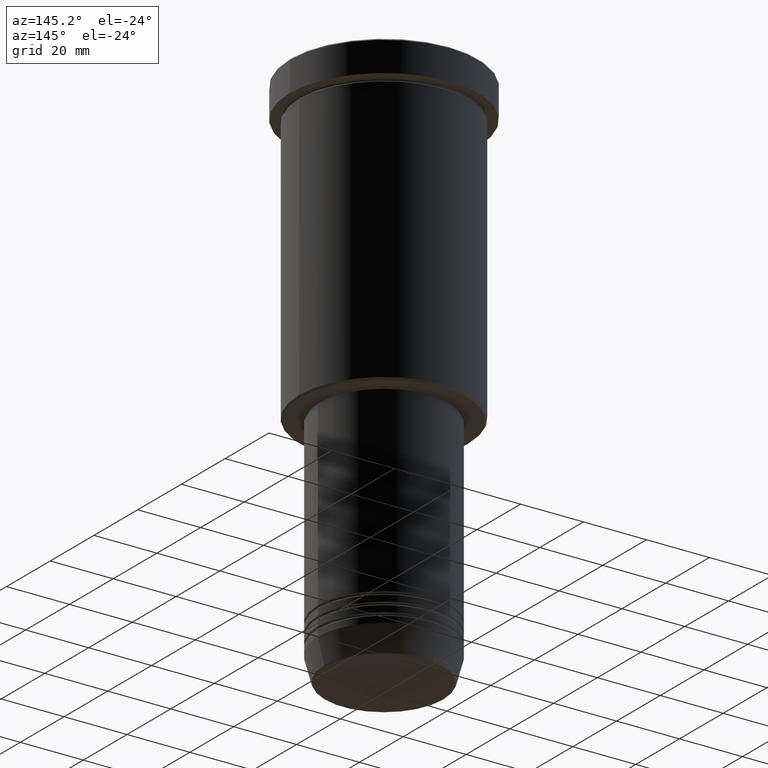
[diagram: clean part render]
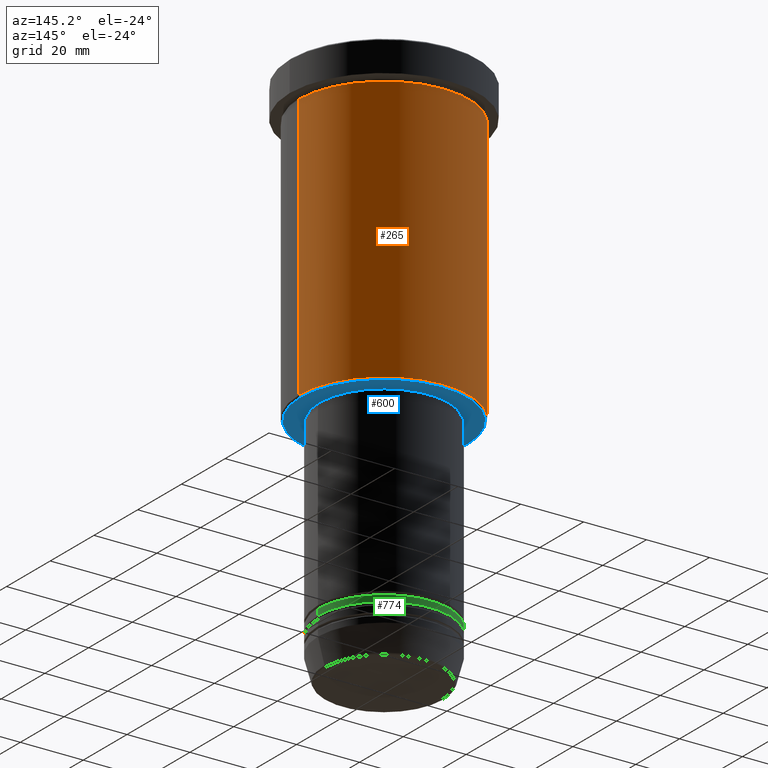
[diagram: same view with three faces highlighted in distinct colors, each labeled with its STEP entity id]
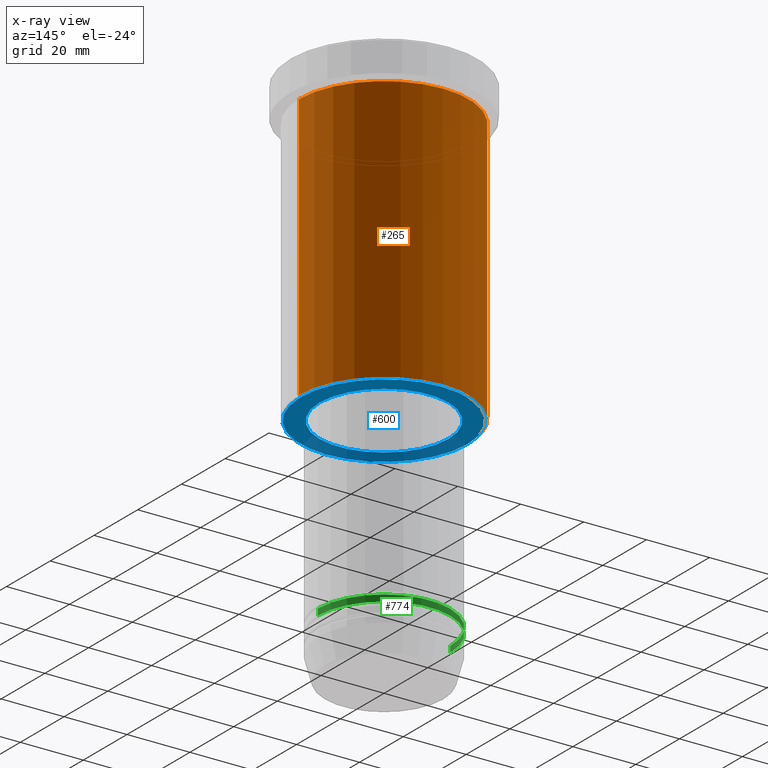
[diagram: x-ray of the same camera — body ghosted, the three highlighted faces saturated]
A machine part, auxiliary view with three faces highlighted in distinct colors.
The next image is the same camera in x-ray (body ghosted, the three faces saturated) — at least one of them is partly hidden behind the body in this view.
Their STEP definitions:

[orange] entity #265 — the highlighted cylindrical surface (partial cylindrical patch) has radius 27 mm, axis along (-0, -0, 1).
#20 = EDGE_CURVE ( 'NONE', #328, #544, #782, .T. ) ;
#62 = DIRECTION ( 'NONE',  ( 1.000000000000000000, 0.000000000000000000, 0.000000000000000000 ) ) ;
#112 = CARTESIAN_POINT ( 'NONE',  ( 27.00000000000000355, 0.000000000000000000, -10.99999999999999289 ) ) ;
#137 = EDGE_CURVE ( 'NONE', #544, #470, #826, .T. ) ;
#193 = CARTESIAN_POINT ( 'NONE',  ( 0.000000000000000000, 0.000000000000000000, 0.000000000000000000 ) ) ;
#227 = VECTOR ( 'NONE', #1075, 1000.000000000000000 ) ;
#265 = ADVANCED_FACE ( 'NONE', ( #286 ), #644, .T. ) ;
#286 = FACE_OUTER_BOUND ( 'NONE', #288, .T. ) ;
#288 = EDGE_LOOP ( 'NONE', ( #324, #334, #803, #333 ) ) ;
#324 = ORIENTED_EDGE ( 'NONE', *, *, #20, .T. ) ;
#328 = VERTEX_POINT ( 'NONE', #944 ) ;
#333 = ORIENTED_EDGE ( 'NONE', *, *, #903, .F. ) ;
#334 = ORIENTED_EDGE ( 'NONE', *, *, #137, .T. ) ;
#353 = DIRECTION ( 'NONE',  ( -1.000000000000000000, 0.000000000000000000, 0.000000000000000000 ) ) ;
#398 = EDGE_CURVE ( 'NONE', #1093, #470, #721, .T. ) ;
#406 = VECTOR ( 'NONE', #1034, 1000.000000000000000 ) ;
#470 = VERTEX_POINT ( 'NONE', #816 ) ;
#475 = AXIS2_PLACEMENT_3D ( 'NONE', #1150, #677, #62 ) ;
#529 = AXIS2_PLACEMENT_3D ( 'NONE', #193, #738, #652 ) ;
#544 = VERTEX_POINT ( 'NONE', #974 ) ;
#549 = CARTESIAN_POINT ( 'NONE',  ( 0.000000000000000000, 0.000000000000000000, -95.49999999999995737 ) ) ;
#644 = CYLINDRICAL_SURFACE ( 'NONE', #529, 27.00000000000000355 ) ;
#652 = DIRECTION ( 'NONE',  ( 1.000000000000000000, 0.000000000000000000, 0.000000000000000000 ) ) ;
#671 = CARTESIAN_POINT ( 'NONE',  ( 27.00000000000000355, 0.000000000000000000, 0.000000000000000000 ) ) ;
#677 = DIRECTION ( 'NONE',  ( -0.000000000000000000, -0.000000000000000000, 1.000000000000000000 ) ) ;
#721 = CIRCLE ( 'NONE', #475, 27.00000000000000355 ) ;
#738 = DIRECTION ( 'NONE',  ( -0.000000000000000000, -0.000000000000000000, 1.000000000000000000 ) ) ;
#782 = CIRCLE ( 'NONE', #989, 27.00000000000000355 ) ;
#803 = ORIENTED_EDGE ( 'NONE', *, *, #398, .F. ) ;
#816 = CARTESIAN_POINT ( 'NONE',  ( -27.00000000000000355, 3.306546357697854128E-15, -10.99999999999999289 ) ) ;
#826 = LINE ( 'NONE', #1165, #227 ) ;
#858 = LINE ( 'NONE', #671, #406 ) ;
#903 = EDGE_CURVE ( 'NONE', #328, #1093, #858, .T. ) ;
#944 = CARTESIAN_POINT ( 'NONE',  ( 27.00000000000000355, 0.000000000000000000, -95.49999999999995737 ) ) ;
#974 = CARTESIAN_POINT ( 'NONE',  ( -27.00000000000000355, 3.306546357697854128E-15, -95.49999999999995737 ) ) ;
#989 = AXIS2_PLACEMENT_3D ( 'NONE', #549, #1096, #353 ) ;
#1034 = DIRECTION ( 'NONE',  ( -0.000000000000000000, -0.000000000000000000, 1.000000000000000000 ) ) ;
#1075 = DIRECTION ( 'NONE',  ( -0.000000000000000000, -0.000000000000000000, 1.000000000000000000 ) ) ;
#1093 = VERTEX_POINT ( 'NONE', #112 ) ;
#1096 = DIRECTION ( 'NONE',  ( -0.000000000000000000, -0.000000000000000000, 1.000000000000000000 ) ) ;
#1150 = CARTESIAN_POINT ( 'NONE',  ( 0.000000000000000000, 0.000000000000000000, -10.99999999999999289 ) ) ;
#1165 = CARTESIAN_POINT ( 'NONE',  ( -27.00000000000000355, 3.306546357697854128E-15, 0.000000000000000000 ) ) ;

[blue] entity #600 — the highlighted planar face has unit normal (0, 0, -1).
#17 = DIRECTION ( 'NONE',  ( 1.000000000000000000, 0.000000000000000000, 0.000000000000000000 ) ) ;
#28 = DIRECTION ( 'NONE',  ( -1.000000000000000000, 0.000000000000000000, 0.000000000000000000 ) ) ;
#38 = ORIENTED_EDGE ( 'NONE', *, *, #976, .T. ) ;
#46 = DIRECTION ( 'NONE',  ( -1.000000000000000000, 0.000000000000000000, 0.000000000000000000 ) ) ;
#56 = AXIS2_PLACEMENT_3D ( 'NONE', #617, #1159, #824 ) ;
#209 = AXIS2_PLACEMENT_3D ( 'NONE', #906, #351, #707 ) ;
#218 = EDGE_CURVE ( 'NONE', #501, #252, #386, .T. ) ;
#252 = VERTEX_POINT ( 'NONE', #832 ) ;
#269 = FACE_OUTER_BOUND ( 'NONE', #365, .T. ) ;
#331 = DIRECTION ( 'NONE',  ( 0.000000000000000000, 0.000000000000000000, -1.000000000000000000 ) ) ;
#351 = DIRECTION ( 'NONE',  ( 0.000000000000000000, 0.000000000000000000, -1.000000000000000000 ) ) ;
#364 = EDGE_LOOP ( 'NONE', ( #38, #420 ) ) ;
#365 = EDGE_LOOP ( 'NONE', ( #659, #1017 ) ) ;
#386 = CIRCLE ( 'NONE', #571, 26.49999999999995381 ) ;
#388 = CARTESIAN_POINT ( 'NONE',  ( 0.000000000000000000, 0.000000000000000000, -96.00000000000000000 ) ) ;
#400 = DIRECTION ( 'NONE',  ( 0.000000000000000000, 0.000000000000000000, -1.000000000000000000 ) ) ;
#420 = ORIENTED_EDGE ( 'NONE', *, *, #797, .T. ) ;
#421 = CIRCLE ( 'NONE', #56, 20.50000000000000000 ) ;
#432 = FACE_BOUND ( 'NONE', #364, .T. ) ;
#467 = CARTESIAN_POINT ( 'NONE',  ( 0.000000000000000000, 0.000000000000000000, -96.00000000000000000 ) ) ;
#498 = VERTEX_POINT ( 'NONE', #794 ) ;
#501 = VERTEX_POINT ( 'NONE', #1154 ) ;
#542 = PLANE ( 'NONE',  #209 ) ;
#570 = DIRECTION ( 'NONE',  ( -0.000000000000000000, -0.000000000000000000, 1.000000000000000000 ) ) ;
#571 = AXIS2_PLACEMENT_3D ( 'NONE', #388, #400, #28 ) ;
#600 = ADVANCED_FACE ( 'NONE', ( #269, #432 ), #542, .T. ) ;
#617 = CARTESIAN_POINT ( 'NONE',  ( 0.000000000000000000, 0.000000000000000000, -96.00000000000000000 ) ) ;
#659 = ORIENTED_EDGE ( 'NONE', *, *, #218, .T. ) ;
#707 = DIRECTION ( 'NONE',  ( -1.000000000000000000, 0.000000000000000000, -0.000000000000000000 ) ) ;
#794 = CARTESIAN_POINT ( 'NONE',  ( -20.50000000000000000, 2.510525938252074481E-15, -96.00000000000000000 ) ) ;
#797 = EDGE_CURVE ( 'NONE', #498, #875, #1068, .T. ) ;
#824 = DIRECTION ( 'NONE',  ( 1.000000000000000000, 0.000000000000000000, 0.000000000000000000 ) ) ;
#832 = CARTESIAN_POINT ( 'NONE',  ( -26.49999999999995381, 3.275930187719167185E-15, -96.00000000000000000 ) ) ;
#849 = EDGE_CURVE ( 'NONE', #252, #501, #1125, .T. ) ;
#866 = CARTESIAN_POINT ( 'NONE',  ( 20.50000000000000000, 0.000000000000000000, -96.00000000000000000 ) ) ;
#875 = VERTEX_POINT ( 'NONE', #866 ) ;
#906 = CARTESIAN_POINT ( 'NONE',  ( 0.000000000000000000, 27.00000000000000355, -96.00000000000000000 ) ) ;
#931 = AXIS2_PLACEMENT_3D ( 'NONE', #467, #570, #17 ) ;
#939 = CARTESIAN_POINT ( 'NONE',  ( 0.000000000000000000, 0.000000000000000000, -96.00000000000000000 ) ) ;
#976 = EDGE_CURVE ( 'NONE', #875, #498, #421, .T. ) ;
#987 = AXIS2_PLACEMENT_3D ( 'NONE', #939, #331, #46 ) ;
#1017 = ORIENTED_EDGE ( 'NONE', *, *, #849, .T. ) ;
#1068 = CIRCLE ( 'NONE', #931, 20.50000000000000000 ) ;
#1125 = CIRCLE ( 'NONE', #987, 26.49999999999995381 ) ;
#1154 = CARTESIAN_POINT ( 'NONE',  ( 26.49999999999995381, 0.000000000000000000, -96.00000000000000000 ) ) ;
#1159 = DIRECTION ( 'NONE',  ( -0.000000000000000000, -0.000000000000000000, 1.000000000000000000 ) ) ;

[green] entity #774 — the highlighted cylindrical surface (partial cylindrical patch) has radius 21 mm, axis along (-0, -0, 1).
#39 = VERTEX_POINT ( 'NONE', #818 ) ;
#82 = EDGE_CURVE ( 'NONE', #413, #921, #1164, .T. ) ;
#98 = FACE_OUTER_BOUND ( 'NONE', #558, .T. ) ;
#113 = CARTESIAN_POINT ( 'NONE',  ( 21.00000000000000000, 0.000000000000000000, 0.000000000000000000 ) ) ;
#169 = CARTESIAN_POINT ( 'NONE',  ( -21.00000000000000000, 2.571758278209441661E-15, 0.000000000000000000 ) ) ;
#192 = AXIS2_PLACEMENT_3D ( 'NONE', #464, #846, #1111 ) ;
#349 = DIRECTION ( 'NONE',  ( 1.000000000000000000, 0.000000000000000000, 0.000000000000000000 ) ) ;
#356 = DIRECTION ( 'NONE',  ( -0.000000000000000000, -0.000000000000000000, 1.000000000000000000 ) ) ;
#412 = CARTESIAN_POINT ( 'NONE',  ( 21.00000000000000000, 0.000000000000000000, -154.9999999999999716 ) ) ;
#413 = VERTEX_POINT ( 'NONE', #412 ) ;
#464 = CARTESIAN_POINT ( 'NONE',  ( 0.000000000000000000, 0.000000000000000000, 0.000000000000000000 ) ) ;
#481 = EDGE_CURVE ( 'NONE', #817, #921, #1095, .T. ) ;
#558 = EDGE_LOOP ( 'NONE', ( #853, #1056, #893, #565 ) ) ;
#565 = ORIENTED_EDGE ( 'NONE', *, *, #723, .F. ) ;
#619 = DIRECTION ( 'NONE',  ( 1.000000000000000000, 0.000000000000000000, 0.000000000000000000 ) ) ;
#623 = CARTESIAN_POINT ( 'NONE',  ( 0.000000000000000000, 0.000000000000000000, -156.9999999999999716 ) ) ;
#661 = VECTOR ( 'NONE', #356, 1000.000000000000000 ) ;
#676 = CARTESIAN_POINT ( 'NONE',  ( -21.00000000000000000, 2.571758278209441661E-15, -156.9999999999999716 ) ) ;
#703 = VECTOR ( 'NONE', #736, 1000.000000000000000 ) ;
#705 = AXIS2_PLACEMENT_3D ( 'NONE', #895, #1175, #619 ) ;
#723 = EDGE_CURVE ( 'NONE', #39, #413, #1120, .T. ) ;
#736 = DIRECTION ( 'NONE',  ( -0.000000000000000000, -0.000000000000000000, 1.000000000000000000 ) ) ;
#755 = CYLINDRICAL_SURFACE ( 'NONE', #192, 21.00000000000000000 ) ;
#774 = ADVANCED_FACE ( 'NONE', ( #98 ), #755, .T. ) ;
#817 = VERTEX_POINT ( 'NONE', #676 ) ;
#818 = CARTESIAN_POINT ( 'NONE',  ( 21.00000000000000000, 0.000000000000000000, -156.9999999999999716 ) ) ;
#821 = AXIS2_PLACEMENT_3D ( 'NONE', #623, #890, #349 ) ;
#846 = DIRECTION ( 'NONE',  ( -0.000000000000000000, -0.000000000000000000, 1.000000000000000000 ) ) ;
#853 = ORIENTED_EDGE ( 'NONE', *, *, #1035, .T. ) ;
#890 = DIRECTION ( 'NONE',  ( -0.000000000000000000, -0.000000000000000000, 1.000000000000000000 ) ) ;
#893 = ORIENTED_EDGE ( 'NONE', *, *, #82, .F. ) ;
#895 = CARTESIAN_POINT ( 'NONE',  ( 0.000000000000000000, 0.000000000000000000, -154.9999999999999716 ) ) ;
#909 = CARTESIAN_POINT ( 'NONE',  ( -21.00000000000000000, 2.571758278209441661E-15, -154.9999999999999716 ) ) ;
#921 = VERTEX_POINT ( 'NONE', #909 ) ;
#1035 = EDGE_CURVE ( 'NONE', #39, #817, #1046, .T. ) ;
#1046 = CIRCLE ( 'NONE', #821, 21.00000000000000000 ) ;
#1056 = ORIENTED_EDGE ( 'NONE', *, *, #481, .T. ) ;
#1095 = LINE ( 'NONE', #169, #661 ) ;
#1111 = DIRECTION ( 'NONE',  ( 1.000000000000000000, 0.000000000000000000, 0.000000000000000000 ) ) ;
#1120 = LINE ( 'NONE', #113, #703 ) ;
#1164 = CIRCLE ( 'NONE', #705, 21.00000000000000000 ) ;
#1175 = DIRECTION ( 'NONE',  ( -0.000000000000000000, -0.000000000000000000, 1.000000000000000000 ) ) ;